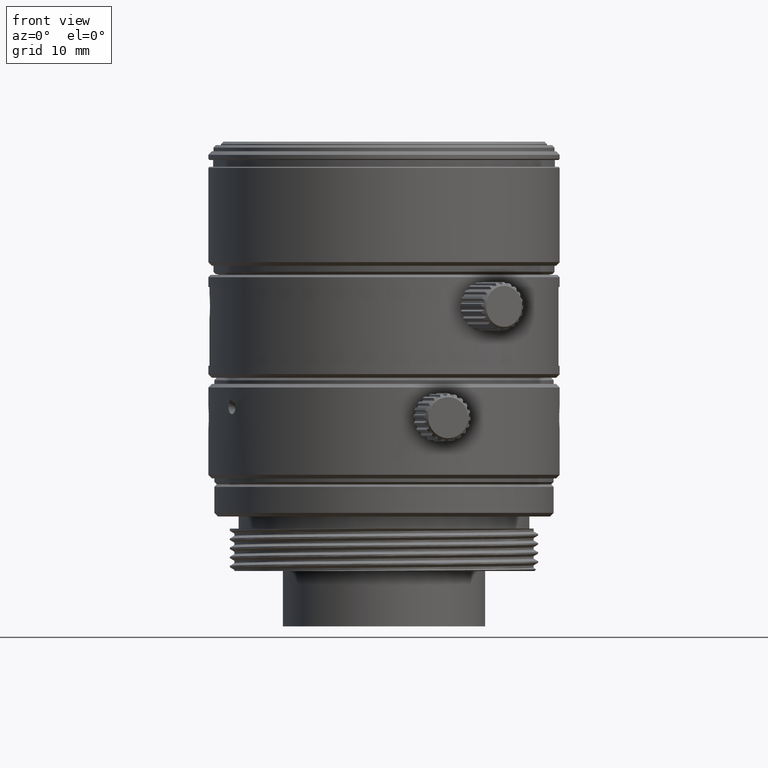
[diagram: clean part render]
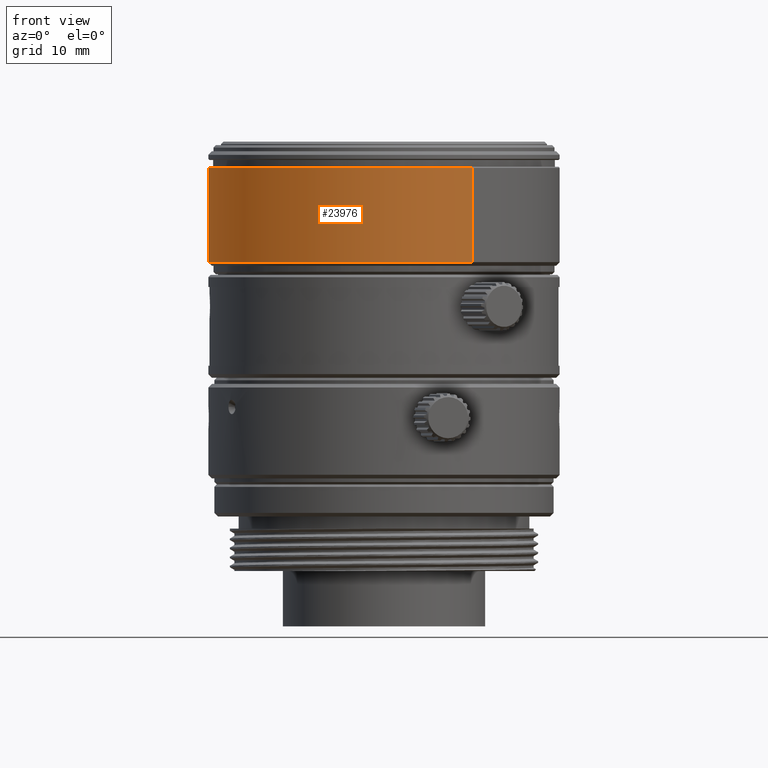
[diagram: same view with one face highlighted and labeled with its STEP entity id]
A machine part, front view. The second image highlights one B-rep face of the part: STEP entity #23976.
In plain terms, the highlighted cylindrical surface (partial cylindrical patch) has radius 14.5 mm, axis along (0, 0, 1).
Its self-contained STEP definition (entity closure, byte-faithful):
#342 = AXIS2_PLACEMENT_3D ( 'NONE', #4642, #16556, #28463 ) ;
#1388 = VERTEX_POINT ( 'NONE', #4087 ) ;
#1465 = VERTEX_POINT ( 'NONE', #28105 ) ;
#1868 = CARTESIAN_POINT ( 'NONE',  ( -14.50000713949999920, -1.775738733100244430E-15, 31.77500006022999912 ) ) ;
#2232 = ORIENTED_EDGE ( 'NONE', *, *, #34136, .F. ) ;
#3534 = ORIENTED_EDGE ( 'NONE', *, *, #36005, .T. ) ;
#4087 = CARTESIAN_POINT ( 'NONE',  ( -7.262001870691459970, 12.55043966861817495, 23.99999992480200106 ) ) ;
#4642 = CARTESIAN_POINT ( 'NONE',  ( 0.000000000000000000, 0.000000000000000000, 31.77500006022999912 ) ) ;
#7143 = DIRECTION ( 'NONE',  ( 0.000000000000000000, 0.000000000000000000, 1.000000000000000000 ) ) ;
#7589 = AXIS2_PLACEMENT_3D ( 'NONE', #10397, #7143, #19076 ) ;
#7730 = CIRCLE ( 'NONE', #342, 14.50000713949999920 ) ;
#8308 = CARTESIAN_POINT ( 'NONE',  ( 0.000000000000000000, 0.000000000000000000, -4.560000033359999705 ) ) ;
#8762 = CARTESIAN_POINT ( 'NONE',  ( 7.262001870691458194, -12.55043966861817673, 31.77500006022999912 ) ) ;
#10397 = CARTESIAN_POINT ( 'NONE',  ( 0.000000000000000000, 0.000000000000000000, 23.99999992480200106 ) ) ;
#10504 = ORIENTED_EDGE ( 'NONE', *, *, #12812, .T. ) ;
#11243 = CARTESIAN_POINT ( 'NONE',  ( 7.262001870691456418, -12.55043966861817317, -4.560000033359999705 ) ) ;
#11383 = DIRECTION ( 'NONE',  ( -0.5008274686230170802, 0.8655471371754751564, 0.000000000000000000 ) ) ;
#12620 = AXIS2_PLACEMENT_3D ( 'NONE', #25836, #14660, #26574 ) ;
#12812 = EDGE_CURVE ( 'NONE', #26116, #17158, #32365, .T. ) ;
#13166 = CARTESIAN_POINT ( 'NONE',  ( 7.262001870691458194, -12.55043966861817673, 23.99999992480200106 ) ) ;
#13209 = CIRCLE ( 'NONE', #12620, 14.50000713949999920 ) ;
#14660 = DIRECTION ( 'NONE',  ( 0.000000000000000000, 0.000000000000000000, -1.000000000000000000 ) ) ;
#16218 = ORIENTED_EDGE ( 'NONE', *, *, #31769, .T. ) ;
#16556 = DIRECTION ( 'NONE',  ( 0.000000000000000000, 0.000000000000000000, -1.000000000000000000 ) ) ;
#16716 = CARTESIAN_POINT ( 'NONE',  ( -7.262001870691458194, 12.55043966861817140, -4.560000033359999705 ) ) ;
#16971 = VERTEX_POINT ( 'NONE', #1868 ) ;
#17158 = VERTEX_POINT ( 'NONE', #8762 ) ;
#19076 = DIRECTION ( 'NONE',  ( 0.5008274686230170802, -0.8655471371754751564, 0.000000000000000000 ) ) ;
#20195 = DIRECTION ( 'NONE',  ( 0.000000000000000000, 0.000000000000000000, 1.000000000000000000 ) ) ;
#20672 = DIRECTION ( 'NONE',  ( 0.000000000000000000, 0.000000000000000000, 1.000000000000000000 ) ) ;
#23054 = VECTOR ( 'NONE', #20195, 1000.000000000000000 ) ;
#23976 = ADVANCED_FACE ( 'NONE', ( #34419 ), #37867, .T. ) ;
#24190 = CIRCLE ( 'NONE', #7589, 14.50000713949999565 ) ;
#25836 = CARTESIAN_POINT ( 'NONE',  ( 0.000000000000000000, 0.000000000000000000, 31.77500006022999912 ) ) ;
#26116 = VERTEX_POINT ( 'NONE', #13166 ) ;
#26574 = DIRECTION ( 'NONE',  ( 1.000000000000000000, 0.000000000000000000, 0.000000000000000000 ) ) ;
#28105 = CARTESIAN_POINT ( 'NONE',  ( -7.262001870691459970, 12.55043966861817495, 31.77500006022999912 ) ) ;
#28463 = DIRECTION ( 'NONE',  ( 1.000000000000000000, 0.000000000000000000, 0.000000000000000000 ) ) ;
#29440 = VECTOR ( 'NONE', #20672, 1000.000000000000000 ) ;
#29672 = AXIS2_PLACEMENT_3D ( 'NONE', #8308, #37493, #11383 ) ;
#31769 = EDGE_CURVE ( 'NONE', #1388, #26116, #24190, .T. ) ;
#32365 = LINE ( 'NONE', #11243, #29440 ) ;
#33319 = EDGE_LOOP ( 'NONE', ( #16218, #10504, #34516, #3534, #2232 ) ) ;
#34136 = EDGE_CURVE ( 'NONE', #1388, #1465, #34931, .T. ) ;
#34419 = FACE_OUTER_BOUND ( 'NONE', #33319, .T. ) ;
#34516 = ORIENTED_EDGE ( 'NONE', *, *, #36774, .T. ) ;
#34931 = LINE ( 'NONE', #16716, #23054 ) ;
#36005 = EDGE_CURVE ( 'NONE', #16971, #1465, #13209, .T. ) ;
#36774 = EDGE_CURVE ( 'NONE', #17158, #16971, #7730, .T. ) ;
#37493 = DIRECTION ( 'NONE',  ( 0.000000000000000000, 0.000000000000000000, 1.000000000000000000 ) ) ;
#37867 = CYLINDRICAL_SURFACE ( 'NONE', #29672, 14.50000713949999565 ) ;